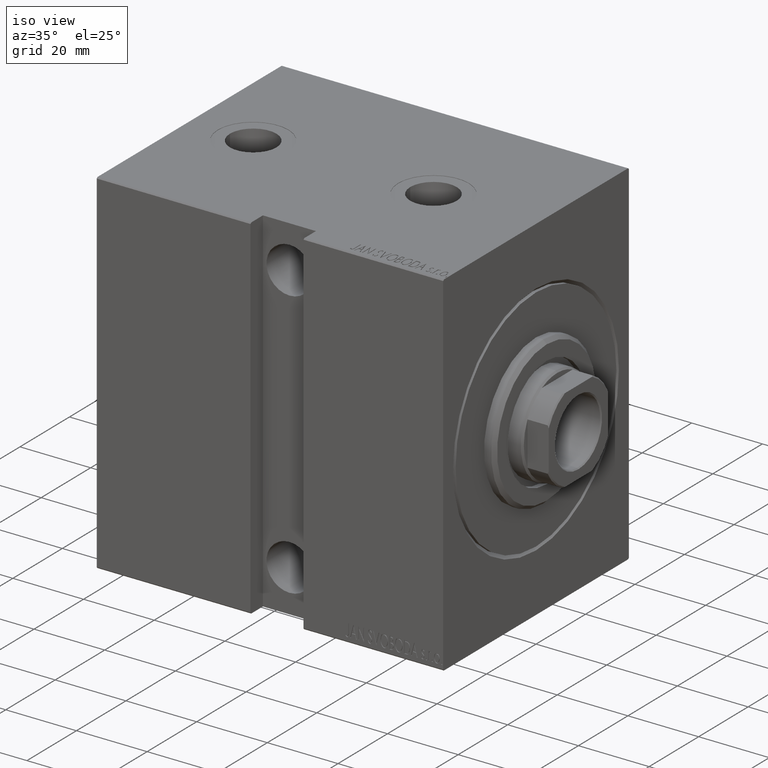
[diagram: clean part render]
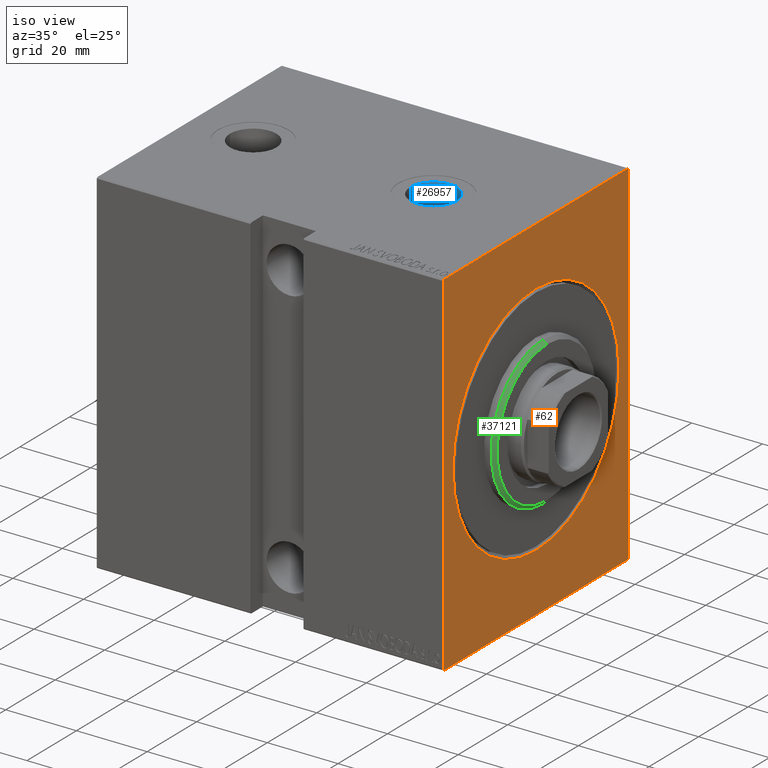
[diagram: same view with three faces highlighted in distinct colors, each labeled with its STEP entity id]
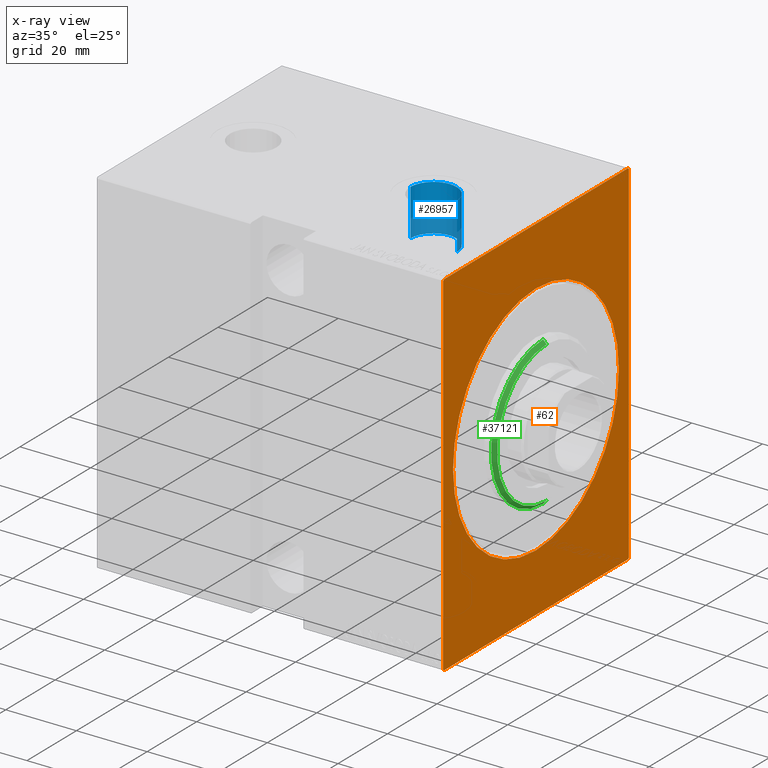
[diagram: x-ray of the same camera — body ghosted, the three highlighted faces saturated]
A machine part, iso view with three faces highlighted in distinct colors.
The next image is the same camera in x-ray (body ghosted, the three faces saturated) — at least one of them is partly hidden behind the body in this view.
Their STEP definitions:

[orange] entity #62 — the highlighted planar face has unit normal (-1, 0, 0).
#62 = ADVANCED_FACE ( 'NONE', ( #24947, #38552 ), #8022, .F. ) ;
#653 = EDGE_CURVE ( 'NONE', #31811, #35963, #15886, .T. ) ;
#865 = DIRECTION ( 'NONE',  ( 0.000000000000000000, 0.000000000000000000, -1.000000000000000000 ) ) ;
#1116 = EDGE_LOOP ( 'NONE', ( #29679, #41395 ) ) ;
#2566 = ORIENTED_EDGE ( 'NONE', *, *, #18677, .T. ) ;
#3925 = ORIENTED_EDGE ( 'NONE', *, *, #11098, .F. ) ;
#4170 = EDGE_CURVE ( 'NONE', #28057, #11947, #36104, .T. ) ;
#4251 = VECTOR ( 'NONE', #20717, 1000.000000000000114 ) ;
#5578 = DIRECTION ( 'NONE',  ( 0.000000000000000000, 1.000000000000000000, 9.251858538542970348E-17 ) ) ;
#6153 = ORIENTED_EDGE ( 'NONE', *, *, #35346, .T. ) ;
#7279 = EDGE_CURVE ( 'NONE', #35963, #31811, #33945, .T. ) ;
#7476 = CARTESIAN_POINT ( 'NONE',  ( 0.000000000000000000, 37.19999999999998153, 50.00000000000001421 ) ) ;
#7681 = VERTEX_POINT ( 'NONE', #12476 ) ;
#8022 = PLANE ( 'NONE',  #39414 ) ;
#8050 = LINE ( 'NONE', #25411, #42251 ) ;
#8435 = CARTESIAN_POINT ( 'NONE',  ( 0.000000000000000000, 4.102566777143632196E-15, -33.49999999999998579 ) ) ;
#9264 = DIRECTION ( 'NONE',  ( 0.000000000000000000, -1.387778780781445182E-16, 1.000000000000000000 ) ) ;
#9663 = EDGE_CURVE ( 'NONE', #7681, #31807, #31607, .T. ) ;
#10413 = EDGE_CURVE ( 'NONE', #33576, #26765, #21675, .T. ) ;
#10487 = LINE ( 'NONE', #24057, #4251 ) ;
#10992 = ORIENTED_EDGE ( 'NONE', *, *, #4170, .F. ) ;
#11000 = DIRECTION ( 'NONE',  ( 0.000000000000000000, -1.000000000000000000, -1.850371707708594563E-16 ) ) ;
#11098 = EDGE_CURVE ( 'NONE', #38151, #32693, #39795, .T. ) ;
#11330 = CARTESIAN_POINT ( 'NONE',  ( 0.000000000000000000, -37.50000000000000000, 50.00000000000000000 ) ) ;
#11628 = CARTESIAN_POINT ( 'NONE',  ( 0.000000000000000000, 37.50000000000000711, -49.70000000000000284 ) ) ;
#11947 = VERTEX_POINT ( 'NONE', #43686 ) ;
#12476 = CARTESIAN_POINT ( 'NONE',  ( 0.000000000000000000, -37.50000000000000000, 49.69999999999998153 ) ) ;
#13474 = EDGE_CURVE ( 'NONE', #28057, #31807, #21363, .T. ) ;
#13668 = DIRECTION ( 'NONE',  ( 1.000000000000000000, 0.000000000000000000, 0.000000000000000000 ) ) ;
#13887 = DIRECTION ( 'NONE',  ( 0.000000000000000000, 0.000000000000000000, -1.000000000000000000 ) ) ;
#14733 = VECTOR ( 'NONE', #865, 1000.000000000000000 ) ;
#14921 = DIRECTION ( 'NONE',  ( 0.000000000000000000, 0.000000000000000000, -1.000000000000000000 ) ) ;
#14955 = ORIENTED_EDGE ( 'NONE', *, *, #13474, .T. ) ;
#15532 = VECTOR ( 'NONE', #9264, 1000.000000000000000 ) ;
#15886 = CIRCLE ( 'NONE', #36541, 33.49999999999998579 ) ;
#16160 = CARTESIAN_POINT ( 'NONE',  ( 0.000000000000000000, 0.000000000000000000, 33.49999999999998579 ) ) ;
#17428 = ORIENTED_EDGE ( 'NONE', *, *, #10413, .F. ) ;
#17612 = DIRECTION ( 'NONE',  ( 0.000000000000000000, 0.000000000000000000, -1.000000000000000000 ) ) ;
#18677 = EDGE_CURVE ( 'NONE', #33576, #32693, #10487, .T. ) ;
#18904 = CARTESIAN_POINT ( 'NONE',  ( 0.000000000000000000, -37.50000000000000000, -49.69999999999999574 ) ) ;
#19041 = ORIENTED_EDGE ( 'NONE', *, *, #9663, .F. ) ;
#19713 = AXIS2_PLACEMENT_3D ( 'NONE', #29949, #13668, #13887 ) ;
#20717 = DIRECTION ( 'NONE',  ( -0.000000000000000000, 0.7071067811865392461, -0.7071067811865556774 ) ) ;
#20983 = DIRECTION ( 'NONE',  ( 0.000000000000000000, -0.7071067811865556774, -0.7071067811865392461 ) ) ;
#21363 = LINE ( 'NONE', #41656, #31247 ) ;
#21371 = ORIENTED_EDGE ( 'NONE', *, *, #39990, .T. ) ;
#21604 = CARTESIAN_POINT ( 'NONE',  ( 0.000000000000000000, 0.000000000000000000, 0.000000000000000000 ) ) ;
#21675 = LINE ( 'NONE', #35283, #22593 ) ;
#22498 = CARTESIAN_POINT ( 'NONE',  ( 0.000000000000000000, -37.50000000000000000, -50.00000000000001421 ) ) ;
#22593 = VECTOR ( 'NONE', #11000, 1000.000000000000000 ) ;
#23042 = CARTESIAN_POINT ( 'NONE',  ( 0.000000000000000000, -37.19999999999997442, -50.00000000000001421 ) ) ;
#24057 = CARTESIAN_POINT ( 'NONE',  ( 0.000000000000000000, 37.19999999999998153, 50.00000000000001421 ) ) ;
#24514 = CARTESIAN_POINT ( 'NONE',  ( 0.000000000000000000, 0.000000000000000000, 0.000000000000000000 ) ) ;
#24947 = FACE_BOUND ( 'NONE', #1116, .T. ) ;
#25411 = CARTESIAN_POINT ( 'NONE',  ( 0.000000000000000000, -37.50000000000000000, 49.69999999999998153 ) ) ;
#25484 = CARTESIAN_POINT ( 'NONE',  ( 0.000000000000000000, 37.49999999999999289, 49.70000000000000284 ) ) ;
#26717 = VECTOR ( 'NONE', #20983, 1000.000000000000114 ) ;
#26765 = VERTEX_POINT ( 'NONE', #31882 ) ;
#27366 = VECTOR ( 'NONE', #5578, 1000.000000000000000 ) ;
#27427 = DIRECTION ( 'NONE',  ( 1.000000000000000000, 0.000000000000000000, 0.000000000000000000 ) ) ;
#28057 = VERTEX_POINT ( 'NONE', #23042 ) ;
#29679 = ORIENTED_EDGE ( 'NONE', *, *, #7279, .T. ) ;
#29949 = CARTESIAN_POINT ( 'NONE',  ( 0.000000000000000000, 0.000000000000000000, 0.000000000000000000 ) ) ;
#30751 = DIRECTION ( 'NONE',  ( -0.000000000000000000, -0.7071067811865474617, 0.7071067811865474617 ) ) ;
#31247 = VECTOR ( 'NONE', #30751, 1000.000000000000114 ) ;
#31607 = LINE ( 'NONE', #11330, #14733 ) ;
#31807 = VERTEX_POINT ( 'NONE', #18904 ) ;
#31811 = VERTEX_POINT ( 'NONE', #8435 ) ;
#31882 = CARTESIAN_POINT ( 'NONE',  ( 0.000000000000000000, -37.19999999999996732, 50.00000000000000000 ) ) ;
#32693 = VERTEX_POINT ( 'NONE', #25484 ) ;
#33576 = VERTEX_POINT ( 'NONE', #7476 ) ;
#33945 = CIRCLE ( 'NONE', #19713, 33.49999999999998579 ) ;
#34659 = EDGE_LOOP ( 'NONE', ( #17428, #2566, #3925, #21371, #10992, #14955, #19041, #6153 ) ) ;
#34810 = LINE ( 'NONE', #38365, #26717 ) ;
#35208 = DIRECTION ( 'NONE',  ( 1.000000000000000000, 0.000000000000000000, 0.000000000000000000 ) ) ;
#35283 = CARTESIAN_POINT ( 'NONE',  ( 0.000000000000000000, 37.49999999999999289, 50.00000000000001421 ) ) ;
#35346 = EDGE_CURVE ( 'NONE', #7681, #26765, #8050, .T. ) ;
#35963 = VERTEX_POINT ( 'NONE', #16160 ) ;
#36104 = LINE ( 'NONE', #22498, #27366 ) ;
#36541 = AXIS2_PLACEMENT_3D ( 'NONE', #24514, #27427, #17612 ) ;
#38151 = VERTEX_POINT ( 'NONE', #11628 ) ;
#38365 = CARTESIAN_POINT ( 'NONE',  ( 0.000000000000000000, 37.50000000000000711, -49.70000000000000284 ) ) ;
#38552 = FACE_OUTER_BOUND ( 'NONE', #34659, .T. ) ;
#39414 = AXIS2_PLACEMENT_3D ( 'NONE', #21604, #35208, #14921 ) ;
#39795 = LINE ( 'NONE', #40017, #15532 ) ;
#39990 = EDGE_CURVE ( 'NONE', #38151, #11947, #34810, .T. ) ;
#40017 = CARTESIAN_POINT ( 'NONE',  ( 0.000000000000000000, 37.50000000000000711, -50.00000000000000711 ) ) ;
#41395 = ORIENTED_EDGE ( 'NONE', *, *, #653, .T. ) ;
#41656 = CARTESIAN_POINT ( 'NONE',  ( 0.000000000000000000, -37.19999999999997442, -50.00000000000001421 ) ) ;
#42144 = DIRECTION ( 'NONE',  ( -0.000000000000000000, 0.7071067811865556774, 0.7071067811865392461 ) ) ;
#42251 = VECTOR ( 'NONE', #42144, 1000.000000000000114 ) ;
#43686 = CARTESIAN_POINT ( 'NONE',  ( 0.000000000000000000, 37.19999999999998863, -50.00000000000000711 ) ) ;

[blue] entity #26957 — the highlighted cylindrical surface (edge-blend (fillet) strip) has radius 6.58 mm, axis along (0, 0, 1).
#1005 = VERTEX_POINT ( 'NONE', #31603 ) ;
#1140 = CIRCLE ( 'NONE', #2594, 6.579999999999999183 ) ;
#2320 = AXIS2_PLACEMENT_3D ( 'NONE', #41615, #31361, #24228 ) ;
#2594 = AXIS2_PLACEMENT_3D ( 'NONE', #30977, #13158, #37459 ) ;
#3260 = CARTESIAN_POINT ( 'NONE',  ( 22.42000000000000171, -8.446040944704017913E-15, 36.74000000000000909 ) ) ;
#6390 = CARTESIAN_POINT ( 'NONE',  ( 22.42000000000000171, -8.446040944704017913E-15, 49.90000000000000568 ) ) ;
#7960 = CYLINDRICAL_SURFACE ( 'NONE', #2320, 6.579999999999999183 ) ;
#8208 = AXIS2_PLACEMENT_3D ( 'NONE', #23682, #33295, #9894 ) ;
#8842 = EDGE_LOOP ( 'NONE', ( #38301, #11580, #30201, #37888 ) ) ;
#9894 = DIRECTION ( 'NONE',  ( 1.000000000000000000, 0.000000000000000000, 0.000000000000000000 ) ) ;
#11362 = EDGE_CURVE ( 'NONE', #12241, #1005, #37970, .T. ) ;
#11580 = ORIENTED_EDGE ( 'NONE', *, *, #12052, .T. ) ;
#12052 = EDGE_CURVE ( 'NONE', #34809, #20087, #30083, .T. ) ;
#12241 = VERTEX_POINT ( 'NONE', #42754 ) ;
#13158 = DIRECTION ( 'NONE',  ( 0.000000000000000000, 0.000000000000000000, 1.000000000000000000 ) ) ;
#20087 = VERTEX_POINT ( 'NONE', #6390 ) ;
#20300 = CIRCLE ( 'NONE', #8208, 6.579999999999999183 ) ;
#21024 = CARTESIAN_POINT ( 'NONE',  ( 35.57999999999999829, -9.251858538542975377E-15, 36.74000000000000909 ) ) ;
#23682 = CARTESIAN_POINT ( 'NONE',  ( 29.00000000000000000, -9.251858538542975377E-15, 36.74000000000000909 ) ) ;
#24228 = DIRECTION ( 'NONE',  ( 1.000000000000000000, 0.000000000000000000, 0.000000000000000000 ) ) ;
#26957 = ADVANCED_FACE ( 'NONE', ( #34494 ), #7960, .F. ) ;
#30083 = LINE ( 'NONE', #30303, #36228 ) ;
#30201 = ORIENTED_EDGE ( 'NONE', *, *, #38229, .T. ) ;
#30303 = CARTESIAN_POINT ( 'NONE',  ( 22.42000000000000171, -8.446040944704017913E-15, 36.74000000000000909 ) ) ;
#30977 = CARTESIAN_POINT ( 'NONE',  ( 29.00000000000000000, -9.251858538542975377E-15, 49.90000000000000568 ) ) ;
#31361 = DIRECTION ( 'NONE',  ( -0.000000000000000000, -0.000000000000000000, 1.000000000000000000 ) ) ;
#31603 = CARTESIAN_POINT ( 'NONE',  ( 35.57999999999999829, -9.251858538542975377E-15, 49.90000000000000568 ) ) ;
#33295 = DIRECTION ( 'NONE',  ( 0.000000000000000000, 0.000000000000000000, 1.000000000000000000 ) ) ;
#34094 = DIRECTION ( 'NONE',  ( -0.000000000000000000, -0.000000000000000000, 1.000000000000000000 ) ) ;
#34494 = FACE_OUTER_BOUND ( 'NONE', #8842, .T. ) ;
#34632 = DIRECTION ( 'NONE',  ( -0.000000000000000000, -0.000000000000000000, 1.000000000000000000 ) ) ;
#34809 = VERTEX_POINT ( 'NONE', #3260 ) ;
#36228 = VECTOR ( 'NONE', #34094, 1000.000000000000000 ) ;
#37459 = DIRECTION ( 'NONE',  ( 1.000000000000000000, 0.000000000000000000, 0.000000000000000000 ) ) ;
#37888 = ORIENTED_EDGE ( 'NONE', *, *, #11362, .F. ) ;
#37970 = LINE ( 'NONE', #21024, #41878 ) ;
#38229 = EDGE_CURVE ( 'NONE', #20087, #1005, #1140, .T. ) ;
#38301 = ORIENTED_EDGE ( 'NONE', *, *, #39237, .F. ) ;
#39237 = EDGE_CURVE ( 'NONE', #34809, #12241, #20300, .T. ) ;
#41615 = CARTESIAN_POINT ( 'NONE',  ( 29.00000000000000000, -9.251858538542975377E-15, 36.74000000000000909 ) ) ;
#41878 = VECTOR ( 'NONE', #34632, 1000.000000000000000 ) ;
#42754 = CARTESIAN_POINT ( 'NONE',  ( 35.57999999999999829, -9.251858538542975377E-15, 36.74000000000000909 ) ) ;

[green] entity #37121 — the highlighted conical surface has half-angle 45 deg.
#874 = DIRECTION ( 'NONE',  ( -0.7071067811865549002, 8.659560562354842879E-17, -0.7071067811865401342 ) ) ;
#4652 = AXIS2_PLACEMENT_3D ( 'NONE', #40868, #21214, #11202 ) ;
#5336 = VERTEX_POINT ( 'NONE', #20228 ) ;
#5351 = AXIS2_PLACEMENT_3D ( 'NONE', #30465, #37376, #34036 ) ;
#8229 = ORIENTED_EDGE ( 'NONE', *, *, #43624, .F. ) ;
#11202 = DIRECTION ( 'NONE',  ( 0.000000000000000000, 0.000000000000000000, -1.000000000000000000 ) ) ;
#11354 = ORIENTED_EDGE ( 'NONE', *, *, #36069, .T. ) ;
#14355 = CARTESIAN_POINT ( 'NONE',  ( 3.000000000000000000, 0.000000000000000000, 0.000000000000000000 ) ) ;
#16635 = VECTOR ( 'NONE', #24544, 1000.000000000000000 ) ;
#17693 = VERTEX_POINT ( 'NONE', #42562 ) ;
#17945 = CARTESIAN_POINT ( 'NONE',  ( 3.000000000000000000, 2.510525938252075270E-15, -20.00000000000001776 ) ) ;
#18432 = VERTEX_POINT ( 'NONE', #25939 ) ;
#20228 = CARTESIAN_POINT ( 'NONE',  ( 1.999999999999995781, 2.571758278209441661E-15, -21.00000000000000000 ) ) ;
#21214 = DIRECTION ( 'NONE',  ( -1.000000000000000000, 0.000000000000000000, 0.000000000000000000 ) ) ;
#21439 = VERTEX_POINT ( 'NONE', #17945 ) ;
#21704 = DIRECTION ( 'NONE',  ( 0.000000000000000000, 0.000000000000000000, 1.000000000000000000 ) ) ;
#23220 = EDGE_CURVE ( 'NONE', #21439, #5336, #28261, .T. ) ;
#24544 = DIRECTION ( 'NONE',  ( -0.7071067811865549002, 0.000000000000000000, 0.7071067811865401342 ) ) ;
#25939 = CARTESIAN_POINT ( 'NONE',  ( 1.999999999999995781, 0.000000000000000000, 21.00000000000000000 ) ) ;
#26623 = CONICAL_SURFACE ( 'NONE', #30888, 20.00000000000001776, 0.7853981633974378429 ) ;
#27940 = FACE_OUTER_BOUND ( 'NONE', #43757, .T. ) ;
#28102 = CARTESIAN_POINT ( 'NONE',  ( 3.000000000000000000, 0.000000000000000000, 20.00000000000001776 ) ) ;
#28261 = LINE ( 'NONE', #31395, #29940 ) ;
#29940 = VECTOR ( 'NONE', #874, 1000.000000000000000 ) ;
#30247 = CIRCLE ( 'NONE', #5351, 20.00000000000001776 ) ;
#30465 = CARTESIAN_POINT ( 'NONE',  ( 3.000000000000000000, 0.000000000000000000, 0.000000000000000000 ) ) ;
#30888 = AXIS2_PLACEMENT_3D ( 'NONE', #14355, #35080, #21704 ) ;
#31395 = CARTESIAN_POINT ( 'NONE',  ( 3.000000000000000000, 2.449293598294708880E-15, -20.00000000000001776 ) ) ;
#34036 = DIRECTION ( 'NONE',  ( 0.000000000000000000, 0.000000000000000000, -1.000000000000000000 ) ) ;
#35080 = DIRECTION ( 'NONE',  ( -1.000000000000000000, 0.000000000000000000, 0.000000000000000000 ) ) ;
#36069 = EDGE_CURVE ( 'NONE', #17693, #18432, #36896, .T. ) ;
#36526 = ORIENTED_EDGE ( 'NONE', *, *, #39344, .F. ) ;
#36896 = LINE ( 'NONE', #28102, #16635 ) ;
#37121 = ADVANCED_FACE ( 'NONE', ( #27940 ), #26623, .T. ) ;
#37376 = DIRECTION ( 'NONE',  ( 1.000000000000000000, -0.000000000000000000, 0.000000000000000000 ) ) ;
#38104 = CIRCLE ( 'NONE', #4652, 21.00000000000000000 ) ;
#39344 = EDGE_CURVE ( 'NONE', #5336, #18432, #38104, .T. ) ;
#40868 = CARTESIAN_POINT ( 'NONE',  ( 1.999999999999995781, 0.000000000000000000, 0.000000000000000000 ) ) ;
#42562 = CARTESIAN_POINT ( 'NONE',  ( 3.000000000000000000, 0.000000000000000000, 20.00000000000001776 ) ) ;
#42593 = ORIENTED_EDGE ( 'NONE', *, *, #23220, .F. ) ;
#43624 = EDGE_CURVE ( 'NONE', #17693, #21439, #30247, .T. ) ;
#43757 = EDGE_LOOP ( 'NONE', ( #42593, #8229, #11354, #36526 ) ) ;